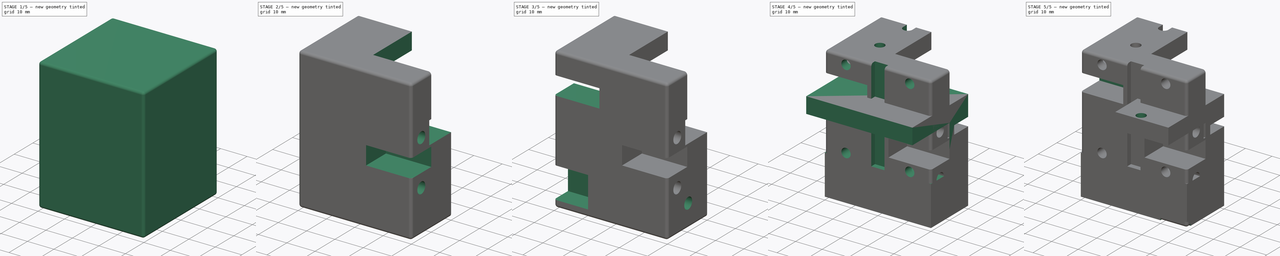
[diagram: build sequence overview — one tinted view per stage of 5, left to right]
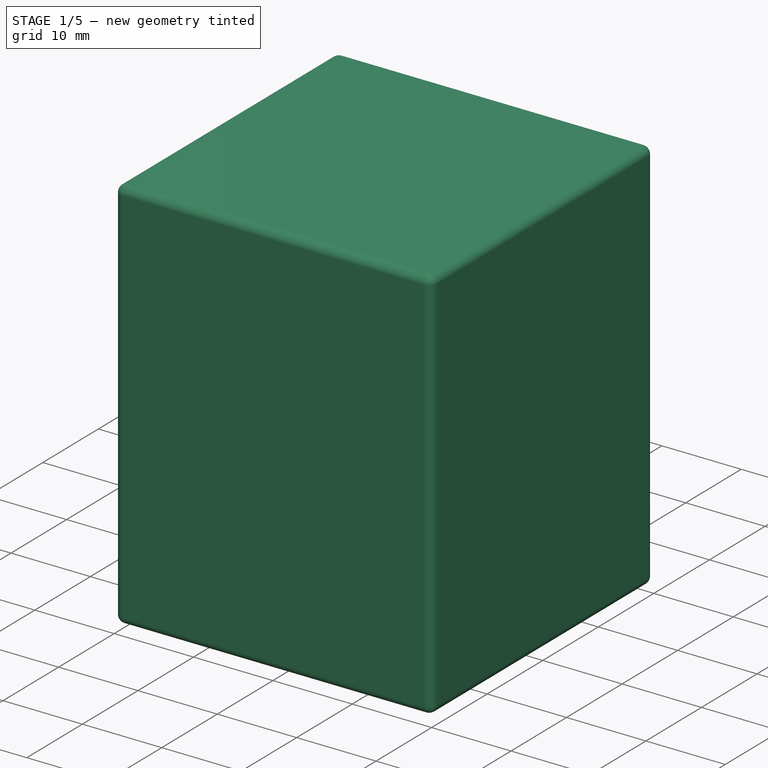
[diagram: stage 1 of 5 — iso view after this stage's code; geometry added in this stage tinted green]
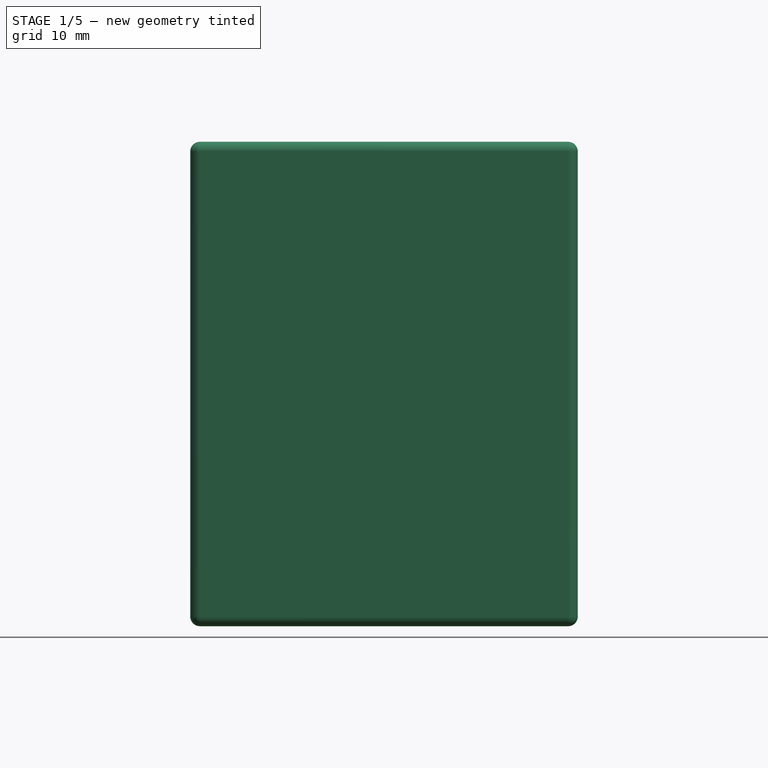
[diagram: stage 1 of 5 — front view after this stage's code; geometry added in this stage tinted green]
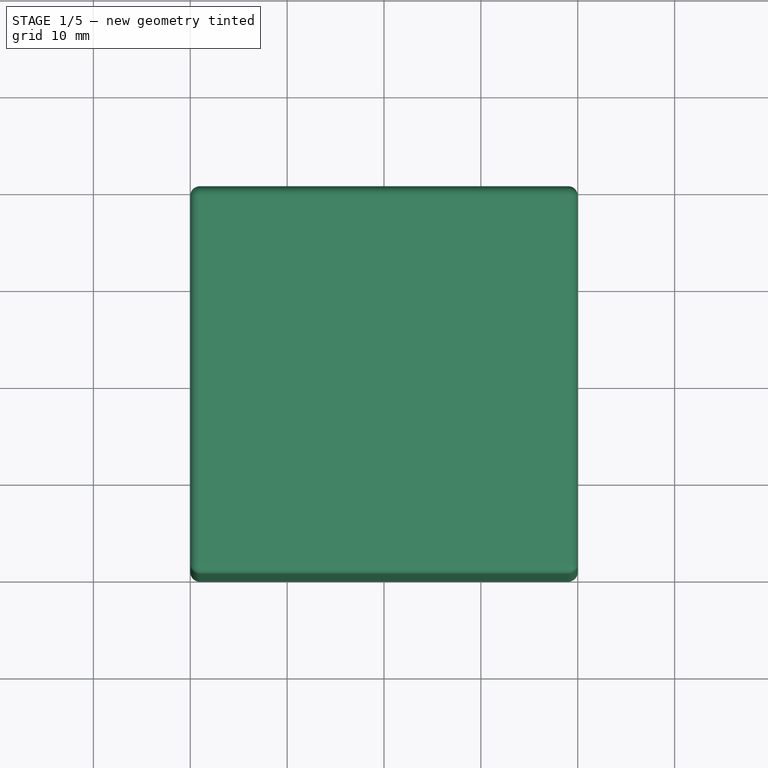
[diagram: stage 1 of 5 — top view after this stage's code; geometry added in this stage tinted green]
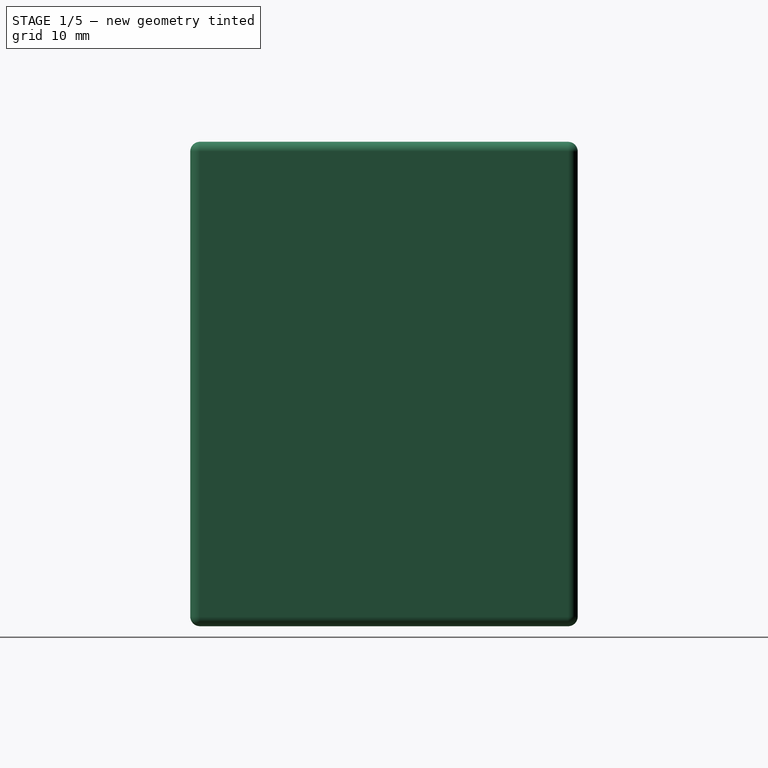
[diagram: stage 1 of 5 — right view after this stage's code; geometry added in this stage tinted green]
FCSTD DOCUMENT  (FreeCAD 0.18R16117 (Git))
Label: XCarriage
License: All rights reserved
LicenseURL: http://en.wikipedia.org/wiki/All_rights_reserved
objects: Sketcher::SketchObject×14, PartDesign::Pocket×13, PartDesign::Body×2, PartDesign::Pad×1, Part::Box×1, PartDesign::FeatureBase×1, PartDesign::Fillet×1
note: 47 computed .brp shape members not serialized (recipe doc carries the construction recipe); baked Part::Feature solids carry a one-line shape summary decoded from their .brp

FEATURE [PartDesign::Body] Body
  Group = -> [Sketch,Pad,Sketch001,Pocket,Sketch002,Pocket001,Sketch003,Pocket002]
  Origin = -> Origin
  Tip = -> Pocket002
FEATURE [Part::Box] Box  label="Würfel"
  AttacherType = Attacher::AttachEngine3D
  Height = 50
  Length = 40
  Width = 40
FEATURE [PartDesign::FeatureBase] BaseFeature
  BaseFeature = -> Box
FEATURE [Sketcher::SketchObject] Sketch004
  ExternalGeometry = -> [BaseFeature]
  MapMode = 5
  Placement = pos=(40,0,0) rot=(0.57735,0.57735,0.57735;2.0944rad)
  Support = -> [BaseFeature]
  sketch-geometry (10):
    g0: LineSegment StartX=31 StartY=27 StartZ=0 EndX=31 EndY=35 EndZ=0
    g1: LineSegment StartX=31 StartY=35 StartZ=0 EndX=30 EndY=35 EndZ=0
    g2: LineSegment StartX=30 StartY=35 StartZ=0 EndX=30 EndY=44 EndZ=0
    g3: LineSegment StartX=30 StartY=44 StartZ=0 EndX=10 EndY=44 EndZ=0
    g4: LineSegment StartX=10 StartY=44 StartZ=0 EndX=10 EndY=35 EndZ=0
    g5: LineSegment StartX=10 StartY=35 StartZ=0 EndX=9 EndY=35 EndZ=0
    g6: LineSegment StartX=9 StartY=35 StartZ=0 EndX=9 EndY=27 EndZ=0
    g7: GeomPoint X=20 Y=0 Z=0
    g8: LineSegment [constr] StartX=20 StartY=0 StartZ=0 EndX=20 EndY=50 EndZ=0
    g9: LineSegment StartX=9 StartY=27 StartZ=0 EndX=31 EndY=27 EndZ=0
  constraints (26):
    c: Vertical(g0)
    c: Coincident(g0,g1)
    c: Horizontal(g1)
    c: Coincident(g1,g2)
    c: Vertical(g2)
    c: Coincident(g2,g3)
    c: Horizontal(g3)
    c: Coincident(g3,g4)
    c: Vertical(g4)
    c: Coincident(g4,g5)
    c: Horizontal(g5)
    c: Coincident(g5,g6)
    c: Vertical(g6)
    c: DistanceX(g6,g0) = 22
    c: Symmetric(g-3,g-1,g7)
    c: Coincident(g8,g7)
    c: PointOnObject(g8,g-4)
    c: Symmetric(g6,g0,g8)
    c: DistanceY(g6,g6) = 8
    c: Horizontal(g1,g4)
    c: DistanceY(g4,g4) = 9
    c: Coincident(g9,g6)
    c: Coincident(g9,g0)
    c: DistanceX(g3,g3) = 20
    c: Symmetric(g3,g2,g8)
    c: DistanceY(g3,g-5) = 6
FEATURE [Sketcher::SketchObject] Sketch005
  ExternalGeometry = -> [BaseFeature]
  MapMode = 5
  Placement = pos=(40,0,0) rot=(0.57735,0.57735,0.57735;2.0944rad)
  Support = -> [BaseFeature]
  sketch-geometry (15):
    g0: LineSegment StartX=0 StartY=26.25 StartZ=0 EndX=10 EndY=26.25 EndZ=0
    g1: LineSegment StartX=10 StartY=26.25 StartZ=0 EndX=10 EndY=19.75 EndZ=0
    g2: LineSegment StartX=10 StartY=19.75 StartZ=0 EndX=0 EndY=19.75 EndZ=0
    g3: LineSegment StartX=0 StartY=19.75 StartZ=0 EndX=0 EndY=26.25 EndZ=0
    g4: LineSegment [constr] StartX=30 StartY=35.75 StartZ=0 EndX=30 EndY=42.25 EndZ=0
    g5: GeomPoint X=20 Y=50 Z=0
    g6: LineSegment [constr] StartX=20 StartY=50 StartZ=0 EndX=20 EndY=0 EndZ=0
    g7: LineSegment [constr] StartX=0 StartY=31 StartZ=0 EndX=40 EndY=31 EndZ=0
    g8: GeomPoint X=20 Y=31 Z=0
    g9: LineSegment [constr] StartX=20 StartY=39 StartZ=0 EndX=20 EndY=23 EndZ=0
    g10: GeomPoint X=30 Y=39 Z=0
    g11: GeomPoint X=10 Y=23 Z=0
    g12: Circle CenterX=5 CenterY=15 CenterZ=0 NormalX=0 NormalY=0 NormalZ=1 AngleXU=0 Radius=2
    g13: Circle CenterX=5 CenterY=31 CenterZ=0 NormalX=0 NormalY=0 NormalZ=1 AngleXU=0 Radius=2
    g14: GeomPoint X=5 Y=23 Z=0
  constraints (36):
    c: Coincident(g0,g1)
    c: Coincident(g1,g2)
    c: Coincident(g2,g3)
    c: Coincident(g3,g0)
    c: Horizontal(g0)
    c: Horizontal(g2)
    c: Vertical(g1)
    c: Vertical(g3)
    c: Vertical(g4)
    c: PointOnObject(g0,g-3)
    c: Symmetric(g-5,g-5,g5)
    c: Coincident(g6,g5)
    c: PointOnObject(g6,g-6)
    c: Vertical(g6)
    c: Horizontal(g7)
    c: PointOnObject(g7,g-4)
    c: PointOnObject(g8,g7)
    c: PointOnObject(g8,g6)
    c: Symmetric(g4,g0,g8)
    c: DistanceX(g0,g4) = 20
    c: Symmetric(g9,g9,g7)
    c: PointOnObject(g9,g6)
    c: DistanceY(g9,g9) = 16
    c: Symmetric(g4,g4,g10)
    c: Horizontal(g9,g10)
    c: Symmetric(g0,g1,g11)
    c: Horizontal(g11,g9)
    c: Diameter(g13) = 4
    c: Equal(g13,g12)
    c: Symmetric(g0,g2,g14)
    c: DistanceY(g12,g13) = 16
    c: Symmetric(g12,g13,g14)
    c: Vertical(g13,g12)
    c: DistanceY(g7,g-5) = 19
    c: PointOnObject(g7,g-3)
    c: DistanceY(g4,g4) = 6.5
FEATURE [Sketcher::SketchObject] Sketch006
  ExternalGeometry = -> [BaseFeature]
  MapMode = 5
  Placement = pos=(0,0,50) rot=(0,0,1;0rad)
  Support = -> [BaseFeature]
  sketch-geometry (7):
    g0: LineSegment StartX=0 StartY=29.5 StartZ=0 EndX=19.5 EndY=29.5 EndZ=0
    g1: LineSegment StartX=19.5 StartY=29.5 StartZ=0 EndX=19.5 EndY=10 EndZ=0
    g2: LineSegment StartX=19.5 StartY=10 StartZ=0 EndX=40 EndY=10 EndZ=0
    g3: LineSegment StartX=40 StartY=10 StartZ=0 EndX=40 EndY=40 EndZ=0
    g4: LineSegment StartX=40 StartY=40 StartZ=0 EndX=0 EndY=40 EndZ=0
    g5: LineSegment StartX=0 StartY=29.5 StartZ=0 EndX=0 EndY=40 EndZ=0
    g6: GeomPoint X=20 Y=0 Z=0
  constraints (17):
    c: Coincident(g1,g2)
    c: Horizontal(g2)
    c: Coincident(g2,g3)
    c: Vertical(g3)
    c: Coincident(g3,g4)
    c: Horizontal(g0)
    c: Coincident(g3,g-4)
    c: Coincident(g5,g4)
    c: Coincident(g4,g-6)
    c: Vertical(g5)
    c: Coincident(g0,g5)
    c: Coincident(g0,g1)
    c: Vertical(g1)
    c: DistanceY(g5,g5) = 10.5
    c: DistanceY(g-5,g2) = 10
    c: Symmetric(g-5,g-5,g6)
    c: DistanceX(g1,g6) = 0.5
FEATURE [Sketcher::SketchObject] Sketch007
  ExternalGeometry = -> [BaseFeature]
  MapMode = 5
  Placement = pos=(0,0,0) rot=(1,0,0;3.14159rad)
  Support = -> [BaseFeature]
  sketch-geometry (4):
    g0: LineSegment StartX=0 StartY=-40 StartZ=0 EndX=40 EndY=-40 EndZ=0
    g1: LineSegment StartX=40 StartY=-40 StartZ=0 EndX=40 EndY=-20 EndZ=0
    g2: LineSegment StartX=40 StartY=-20 StartZ=0 EndX=0 EndY=-20 EndZ=0
    g3: LineSegment StartX=0 StartY=-20 StartZ=0 EndX=0 EndY=-40 EndZ=0
  constraints (9):
    c: Coincident(g0,g1)
    c: Coincident(g1,g2)
    c: Coincident(g2,g3)
    c: Coincident(g3,g0)
    c: Horizontal(g2)
    c: Vertical(g1)
    c: Symmetric(g-1,g-4,g2)
    c: Coincident(g0,g-4)
    c: Coincident(g0,g-3)
FEATURE [Sketcher::SketchObject] Sketch008
  ExternalGeometry = -> [BaseFeature]
  MapMode = 5
  Placement = pos=(0,0,0) rot=(0.57735,-0.57735,-0.57735;2.0944rad)
  Support = -> [BaseFeature]
  sketch-geometry (12):
    g0: LineSegment StartX=-10 StartY=42.25 StartZ=0 EndX=0 EndY=42.25 EndZ=0
    g1: LineSegment StartX=0 StartY=42.25 StartZ=0 EndX=0 EndY=35.75 EndZ=0
    g2: LineSegment StartX=0 StartY=35.75 StartZ=0 EndX=-10 EndY=35.75 EndZ=0
    g3: LineSegment StartX=-10 StartY=35.75 StartZ=0 EndX=-10 EndY=42.25 EndZ=0
    g4: LineSegment [constr] StartX=-30 StartY=19.75 StartZ=0 EndX=-30 EndY=26.25 EndZ=0
    g5: GeomPoint X=-20 Y=31 Z=0
    g6: GeomPoint X=-10 Y=39 Z=0
    g7: GeomPoint X=-30 Y=23 Z=0
    g8: Circle CenterX=-5 CenterY=47 CenterZ=0 NormalX=0 NormalY=0 NormalZ=1 AngleXU=0 Radius=2
    g9: Circle CenterX=-5 CenterY=31 CenterZ=0 NormalX=0 NormalY=0 NormalZ=1 AngleXU=0 Radius=2
    g10: GeomPoint X=-5 Y=39 Z=0
    g11: LineSegment [constr] StartX=-40 StartY=31 StartZ=0 EndX=0 EndY=31 EndZ=0
  constraints (28):
    c: Coincident(g0,g1)
    c: Coincident(g1,g2)
    c: Coincident(g2,g3)
    c: Coincident(g3,g0)
    c: Horizontal(g0)
    c: Horizontal(g2)
    c: Vertical(g1)
    c: Vertical(g3)
    c: Vertical(g4)
    c: Symmetric(g4,g2,g5)
    c: DistanceX(g4,g2) = 20
    c: Symmetric(g0,g2,g6)
    c: Symmetric(g4,g4,g7)
    c: DistanceY(g7,g6) = 16
    c: Diameter(g9) = 4
    c: Equal(g9,g8)
    c: Symmetric(g2,g0,g10)
    c: Symmetric(g8,g9,g10)
    c: Vertical(g8,g9)
    c: DistanceY(g9,g8) = 16
    c: PointOnObject(g0,g-4)
    c: PointOnObject(g11,g-6)
    c: PointOnObject(g11,g-4)
    c: Horizontal(g11)
    c: Symmetric(g11,g11,g5)
    c: DistanceY(g11,g-6) = 19
    c: Equal(g3,g4)
    c: DistanceY(g4,g4) = 6.5
FEATURE [Sketcher::SketchObject] Sketch009
  ExternalGeometry = -> [BaseFeature]
  MapMode = 5
  Placement = pos=(0,0,0) rot=(0.57735,-0.57735,-0.57735;2.0944rad)
  Support = -> [BaseFeature]
  sketch-geometry (5):
    g0: LineSegment StartX=-7 StartY=13.5 StartZ=0 EndX=0 EndY=13.5 EndZ=0
    g1: LineSegment StartX=0 StartY=13.5 StartZ=0 EndX=0 EndY=2.5 EndZ=0
    g2: LineSegment StartX=0 StartY=2.5 StartZ=0 EndX=-7 EndY=2.5 EndZ=0
    g3: LineSegment StartX=-7 StartY=2.5 StartZ=0 EndX=-7 EndY=13.5 EndZ=0
    g4: GeomPoint X=-7 Y=8 Z=0
  constraints (13):
    c: Coincident(g0,g1)
    c: Coincident(g1,g2)
    c: Coincident(g2,g3)
    c: Coincident(g3,g0)
    c: Horizontal(g0)
    c: Horizontal(g2)
    c: Vertical(g1)
    c: Vertical(g3)
    c: PointOnObject(g1,g-3)
    c: Symmetric(g0,g2,g4)
    c: DistanceY(g1,g1) = 11
    c: DistanceX(g0,g0) = 7
    c: DistanceY(g-1,g4) = 8
FEATURE [Sketcher::SketchObject] Sketch010
  ExternalGeometry = -> [BaseFeature]
  MapMode = 5
  Placement = pos=(40,0,0) rot=(0.57735,0.57735,0.57735;2.0944rad)
  Support = -> [BaseFeature]
  sketch-geometry (5):
    g0: Circle CenterX=10.5 CenterY=8 CenterZ=0 NormalX=0 NormalY=0 NormalZ=1 AngleXU=0 Radius=2
    g1: GeomPoint X=20 Y=8 Z=0
    g2: Circle [constr] CenterX=29.5 CenterY=8 CenterZ=0 NormalX=0 NormalY=0 NormalZ=1 AngleXU=0 Radius=2
    g3: GeomPoint X=20 Y=0 Z=0
    g4: LineSegment [constr] StartX=20 StartY=0 StartZ=0 EndX=20 EndY=8 EndZ=0
  constraints (10):
    c: DistanceY(g-1,g0) = 8
    c: Diameter(g0) = 4
    c: Equal(g2,g0)
    c: Symmetric(g0,g2,g1)
    c: DistanceX(g0,g2) = 19
    c: Symmetric(g-1,g-3,g3)
    c: Coincident(g4,g3)
    c: Coincident(g4,g1)
    c: Vertical(g4)
    c: Horizontal(g0,g2)
FEATURE [Sketcher::SketchObject] Sketch011
  ExternalGeometry = -> [BaseFeature]
  MapMode = 5
  Placement = pos=(0,0,0) rot=(1,0,0;1.5708rad)
  Support = -> [BaseFeature]
  sketch-geometry (4):
    g0: Circle CenterX=8 CenterY=47 CenterZ=0 NormalX=0 NormalY=0 NormalZ=1 AngleXU=0 Radius=1.75
    g1: Circle CenterX=32 CenterY=47 CenterZ=0 NormalX=0 NormalY=0 NormalZ=1 AngleXU=0 Radius=1.75
    g2: Circle CenterX=8 CenterY=17 CenterZ=0 NormalX=0 NormalY=0 NormalZ=1 AngleXU=0 Radius=1.75
    g3: Circle CenterX=32 CenterY=17 CenterZ=0 NormalX=0 NormalY=0 NormalZ=1 AngleXU=0 Radius=1.75
  constraints (12):
    c: Diameter(g2) = 3.5
    c: Equal(g2,g0)
    c: Equal(g2,g1)
    c: DistanceX(g-3,g0) = 8
    c: DistanceX(g1,g-3) = 8
    c: Horizontal(g1,g0)
    c: DistanceY(g0,g-3) = 3
    c: Equal(g3,g2)
    c: Horizontal(g2,g3)
    c: Vertical(g2,g0)
    c: Vertical(g1,g3)
    c: DistanceY(g2,g0) = 30
FEATURE [Sketcher::SketchObject] Sketch012
  ExternalGeometry = -> [BaseFeature]
  MapMode = 5
  Placement = pos=(0,0,50) rot=(0,0,1;0rad)
  Support = -> [BaseFeature]
  sketch-geometry (8):
    g0: Circle CenterX=12 CenterY=12.5 CenterZ=0 NormalX=0 NormalY=0 NormalZ=1 AngleXU=0 Radius=1.75
    g1: GeomPoint X=0 Y=20 Z=0
    g2: LineSegment [constr] StartX=0 StartY=20 StartZ=0 EndX=40 EndY=20 EndZ=0
    g3: GeomPoint X=20 Y=20 Z=0
    g4: ArcOfCircle CenterX=12 CenterY=27.5 CenterZ=0 NormalX=0 NormalY=0 NormalZ=1 AngleXU=0 Radius=1.75 StartAngle=3.14159 EndAngle=6.28319
    g5: ArcOfCircle CenterX=12 CenterY=32.5 CenterZ=0 NormalX=0 NormalY=0 NormalZ=1 AngleXU=0 Radius=1.75 StartAngle=1.3e-15 EndAngle=3.14159
    g6: LineSegment StartX=13.75 StartY=27.5 StartZ=0 EndX=13.75 EndY=32.5 EndZ=0
    g7: LineSegment StartX=10.25 StartY=27.5 StartZ=0 EndX=10.25 EndY=32.5 EndZ=0
  constraints (17):
    c: Symmetric(g-3,g-1,g1)
    c: Coincident(g2,g1)
    c: PointOnObject(g2,g-4)
    c: Horizontal(g2)
    c: Symmetric(g1,g2,g3)
    c: Tangent(g4,g7) = 1.5708
    c: Tangent(g4,g6) = -1.5708
    c: Tangent(g6,g5) = -1.5708
    c: Tangent(g7,g5) = 1.5708
    c: Vertical(g6)
    c: Equal(g4,g5)
    c: Equal(g5,g0)
    c: DistanceY(g4,g5) = 5
    c: Diameter(g0) = 3.5
    c: Symmetric(g4,g0,g2)
    c: DistanceY(g0,g4) = 15
    c: DistanceX(g4,g3) = 8
FEATURE [PartDesign::Fillet] Fillet
  Base = -> BaseFeature [Face2,Face3,Face6,Face4,Face5,Face1]
  BaseFeature = -> BaseFeature
  Radius = 1
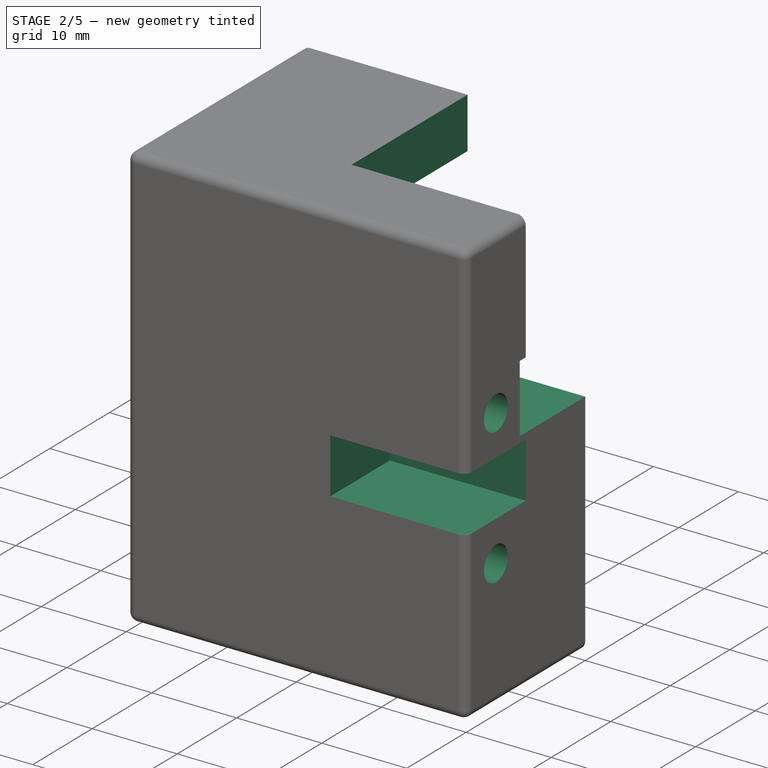
[diagram: stage 2 of 5 — iso view after this stage's code; geometry added in this stage tinted green]
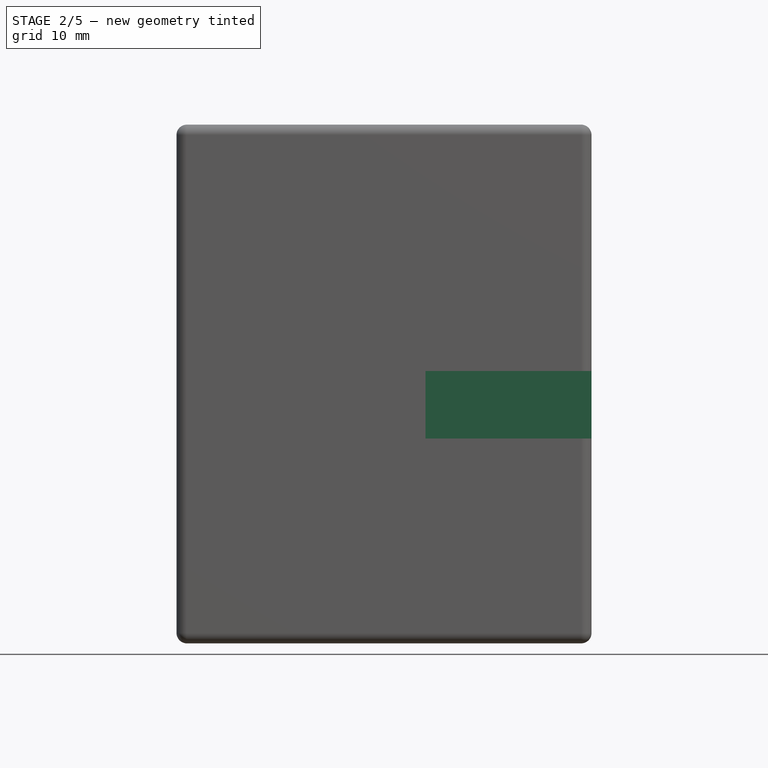
[diagram: stage 2 of 5 — front view after this stage's code; geometry added in this stage tinted green]
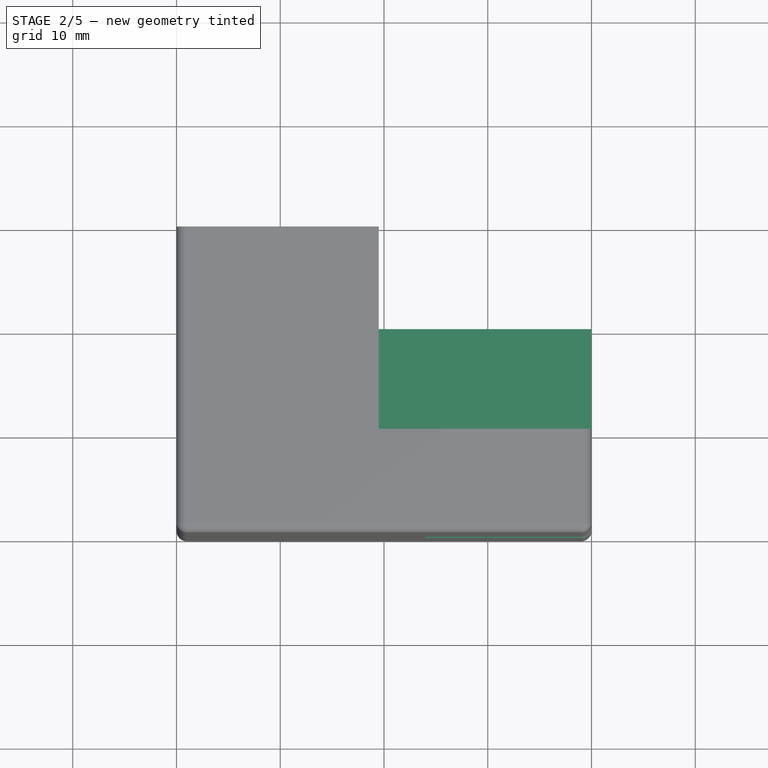
[diagram: stage 2 of 5 — top view after this stage's code; geometry added in this stage tinted green]
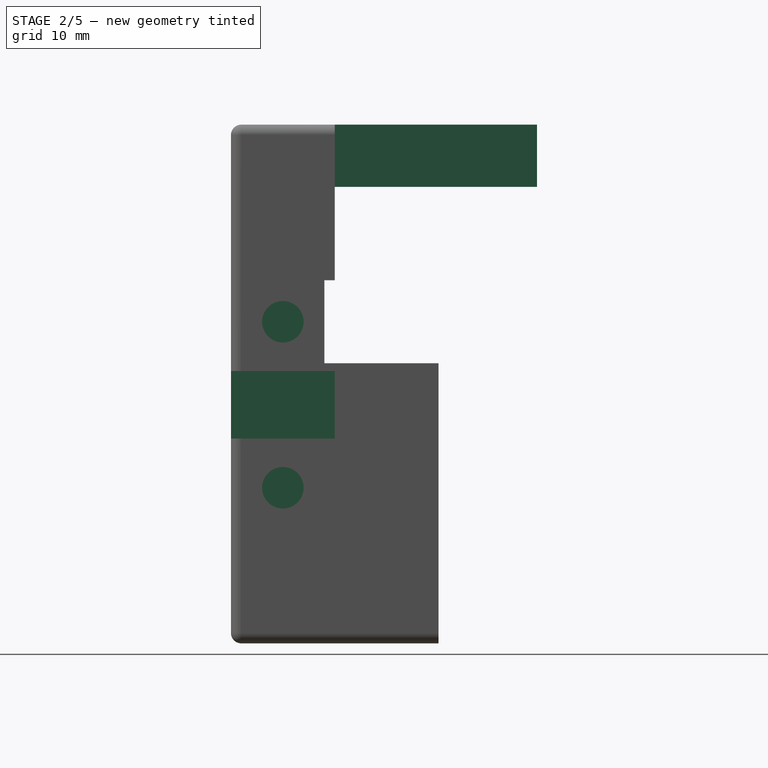
[diagram: stage 2 of 5 — right view after this stage's code; geometry added in this stage tinted green]
FEATURE [PartDesign::Pocket] Pocket003  label="PocketRail"
  BaseFeature = -> Fillet
  Length = 5
  Length2 = 100
  Profile = -> Sketch004
  Type = 1
FEATURE [PartDesign::Pocket] Pocket005  label="PocketCutHalfTop"
  BaseFeature = -> Pocket003
  Length = 6
  Length2 = 100
  Profile = -> Sketch006
  Type = 0
FEATURE [PartDesign::Pocket] Pocket006  label="PocketCutHalfBotton"
  BaseFeature = -> Pocket005
  Length = 44
  Length2 = 100
  Profile = -> Sketch007
  Type = 0
FEATURE [PartDesign::Pocket] Pocket004  label="PocketBeltFront"
  BaseFeature = -> Pocket006
  Length = 16
  Length2 = 100
  Profile = -> Sketch005
  Type = 0
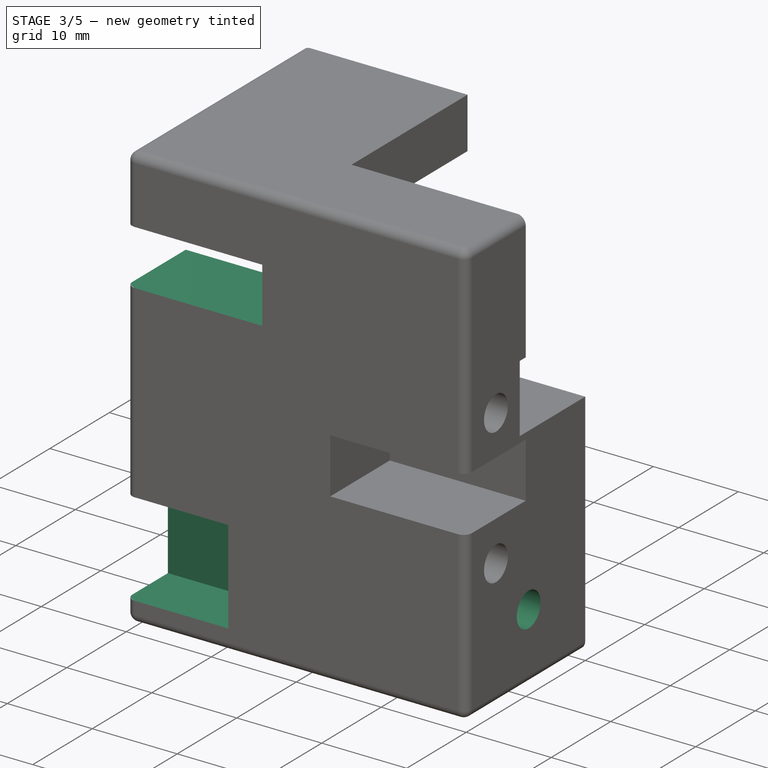
[diagram: stage 3 of 5 — iso view after this stage's code; geometry added in this stage tinted green]
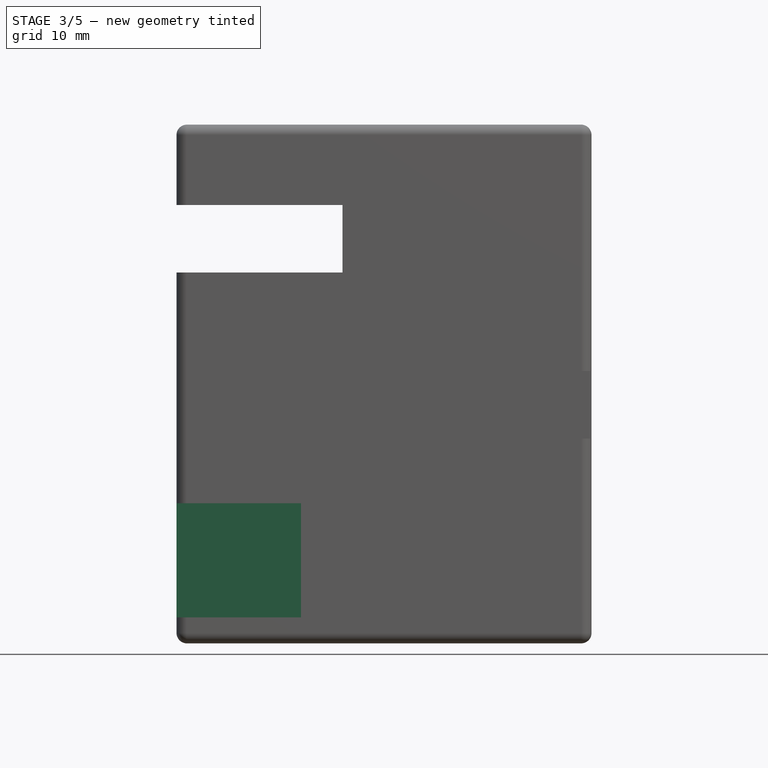
[diagram: stage 3 of 5 — front view after this stage's code; geometry added in this stage tinted green]
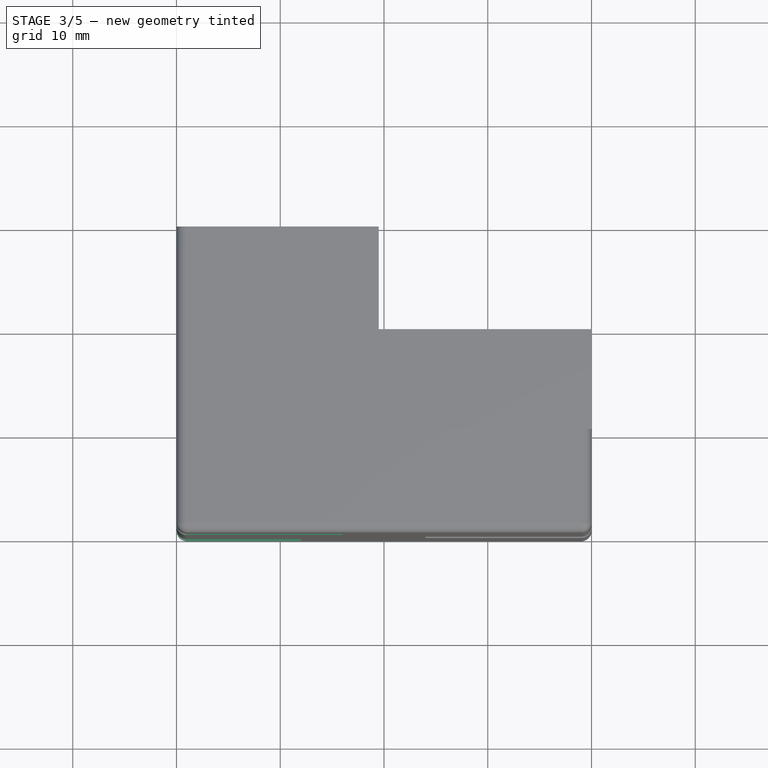
[diagram: stage 3 of 5 — top view after this stage's code; geometry added in this stage tinted green]
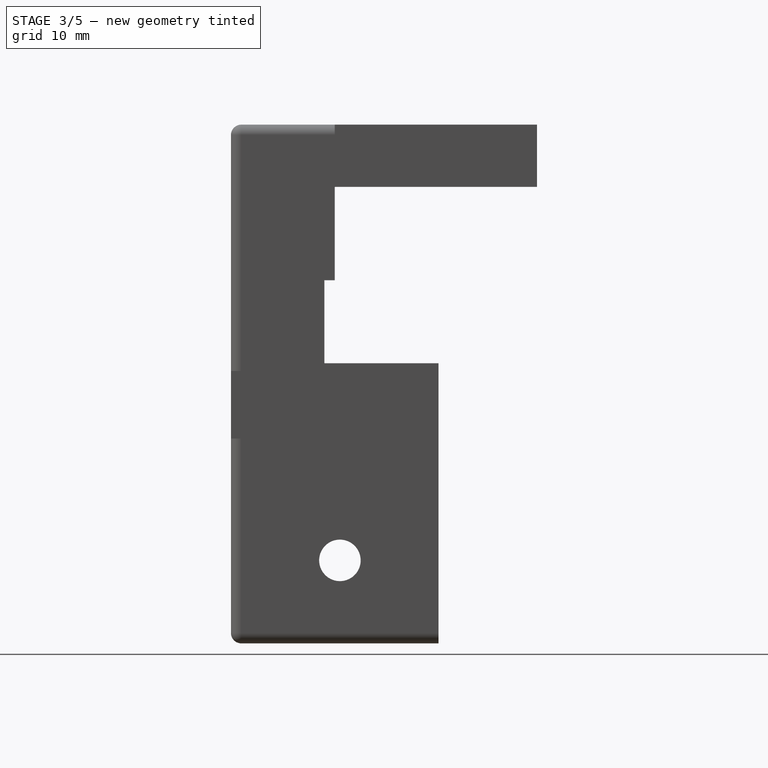
[diagram: stage 3 of 5 — right view after this stage's code; geometry added in this stage tinted green]
FEATURE [PartDesign::Pocket] Pocket007  label="PocketBeltBack"
  BaseFeature = -> Pocket004
  Length = 16
  Length2 = 100
  Profile = -> Sketch008
  Type = 0
FEATURE [PartDesign::Pocket] Pocket009  label="PocketEndstopFront"
  BaseFeature = -> Pocket007
  Length = 12
  Length2 = 100
  Profile = -> Sketch010
  Type = 1
FEATURE [PartDesign::Pocket] Pocket008  label="PocketEndstopBack"
  BaseFeature = -> Pocket009
  Length = 12
  Length2 = 100
  Profile = -> Sketch009
  Type = 0
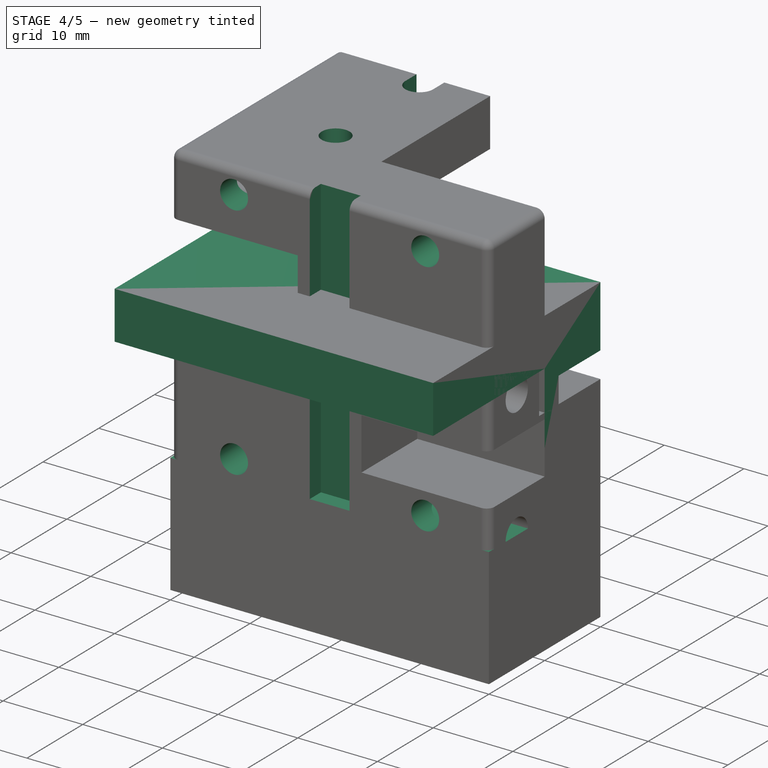
[diagram: stage 4 of 5 — iso view after this stage's code; geometry added in this stage tinted green]
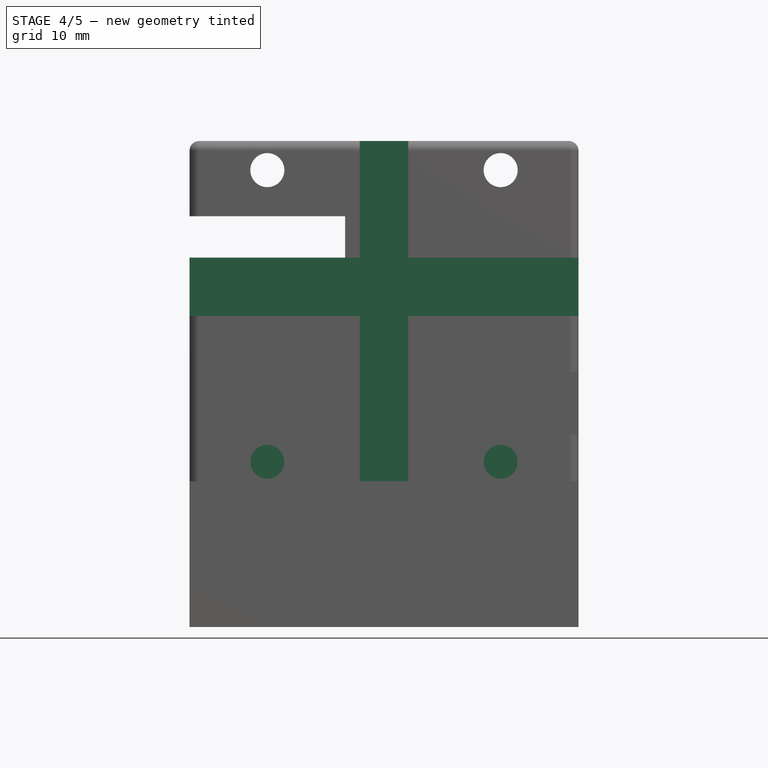
[diagram: stage 4 of 5 — front view after this stage's code; geometry added in this stage tinted green]
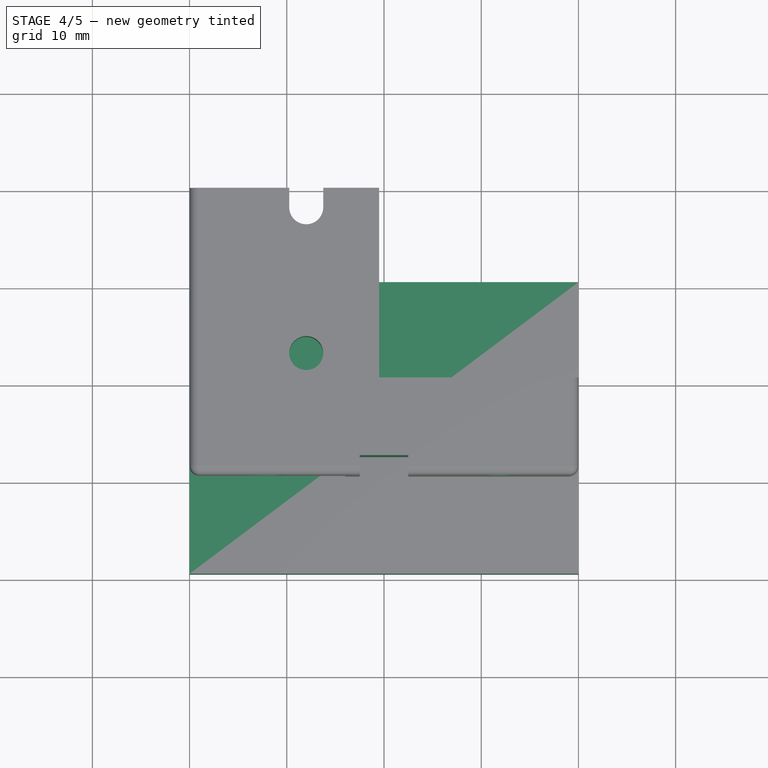
[diagram: stage 4 of 5 — top view after this stage's code; geometry added in this stage tinted green]
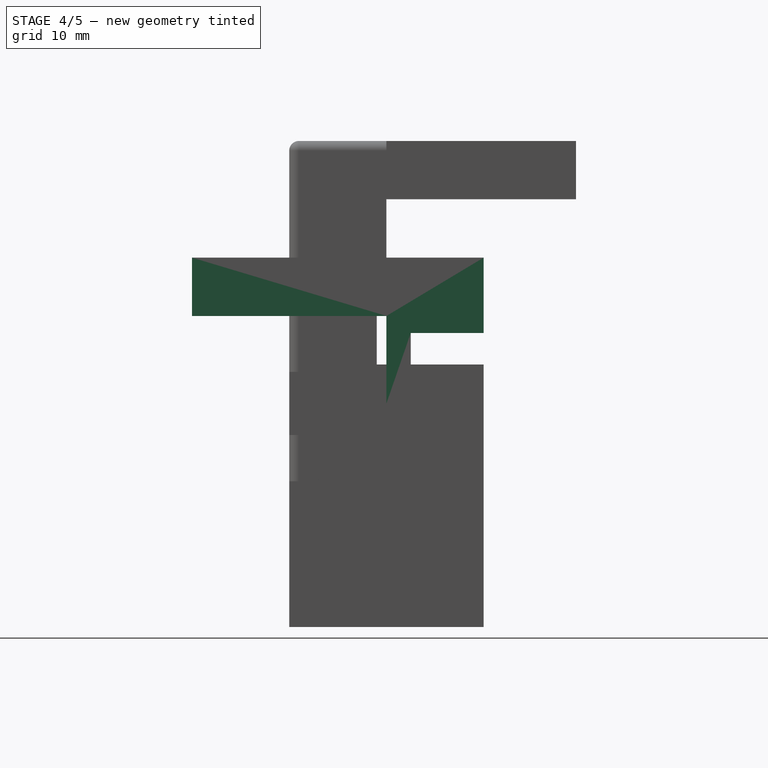
[diagram: stage 4 of 5 — right view after this stage's code; geometry added in this stage tinted green]
FEATURE [Sketcher::SketchObject] Sketch  label="Base"
  MapMode = 5
  Placement = pos=(0,0,0) rot=(0.57735,0.57735,0.57735;2.0944rad)
  Support = -> [YZ_Plane]
  sketch-geometry (21):
    g0: LineSegment StartX=11 StartY=15 StartZ=0 EndX=11 EndY=23 EndZ=0
    g1: LineSegment StartX=0 StartY=0 StartZ=0 EndX=20 EndY=0 EndZ=0
    g2: LineSegment StartX=-10 StartY=38 StartZ=0 EndX=20 EndY=38 EndZ=0
    g3: LineSegment StartX=11 StartY=23 StartZ=0 EndX=10 EndY=23 EndZ=0
    g4: LineSegment StartX=10 StartY=23 StartZ=0 EndX=10 EndY=32 EndZ=0
    g5: LineSegment StartX=10 StartY=32 StartZ=0 EndX=-10 EndY=32 EndZ=0
    g6: LineSegment StartX=0 StartY=6 StartZ=0 EndX=0 EndY=0 EndZ=0
    g7: LineSegment StartX=20 StartY=38 StartZ=0 EndX=20 EndY=30.25 EndZ=0
    g8: LineSegment StartX=12.5 StartY=30.25 StartZ=0 EndX=12.5 EndY=23.75 EndZ=0
    g9: LineSegment StartX=20 StartY=23.75 StartZ=0 EndX=20 EndY=14.25 EndZ=0
    g10: LineSegment StartX=20 StartY=14.25 StartZ=0 EndX=12.5 EndY=14.25 EndZ=0
    g11: LineSegment StartX=12.5 StartY=14.25 StartZ=0 EndX=12.5 EndY=7.75 EndZ=0
    g12: LineSegment StartX=12.5 StartY=7.75 StartZ=0 EndX=20 EndY=7.75 EndZ=0
    g13: LineSegment StartX=20 StartY=7.75 StartZ=0 EndX=20 EndY=0 EndZ=0
    g14: GeomPoint X=12.5 Y=27 Z=0
    g15: GeomPoint X=12.5 Y=11 Z=0
    g16: LineSegment StartX=0 StartY=15 StartZ=0 EndX=0 EndY=6 EndZ=0
    g17: LineSegment StartX=-10 StartY=32 StartZ=0 EndX=-10 EndY=38 EndZ=0
    g18: LineSegment StartX=0 StartY=15 StartZ=0 EndX=11 EndY=15 EndZ=0
    g19: LineSegment StartX=12.5 StartY=30.25 StartZ=0 EndX=20 EndY=30.25 EndZ=0
    g20: LineSegment StartX=12.5 StartY=23.75 StartZ=0 EndX=20 EndY=23.75 EndZ=0
  constraints (57):
    c: Horizontal(g1)
    c: DistanceY(g0,g0) = 8
    c: Horizontal(g2)
    c: Coincident(g0,g3)
    c: Horizontal(g3)
    c: Coincident(g3,g4)
    c: Vertical(g4)
    c: DistanceX(g5,g5) = 20
    c: Symmetric(g5,g4,g-2)
    c: DistanceY(g4,g2) = 6
    c: DistanceY(g0,g4) = 9
    c: Coincident(g6,g1)
    c: Vertical(g6)
    c: DistanceY(g6,g6) = 6
    c: Vertical(g2,g1)
    c: Coincident(g4,g5)
    c: Coincident(g2,g7)
    c: Vertical(g7)
    c: Vertical(g8)
    c: Vertical(g9)
    c: Coincident(g9,g10)
    c: Horizontal(g10)
    c: Coincident(g10,g11)
    c: Vertical(g11)
    c: Coincident(g11,g12)
    c: Horizontal(g12)
    c: Coincident(g12,g13)
    c: Coincident(g13,g1)
    c: Vertical(g13)
    c: DistanceY(g9,g7) = 6.5
    c: Symmetric(g8,g8,g14)
    c: Vertical(g9,g12)
    c: DistanceY(g12,g9) = 6.5
    c: Vertical(g10,g8)
    c: Symmetric(g10,g11,g15)
    c: DistanceY(g14,g4) = 5
    c: DistanceY(g6,g15) = 5
    c: Vertical(g16)
    c: Coincident(g6,g16)
    c: DistanceY(g16,g16) = 9
    c: Coincident(g17,g5)
    c: Vertical(g17)
    c: Coincident(g2,g17)
    c: DistanceX(g-1,g11) = 12.5
    c: DistanceX(g-1,g1) = 20
    c: DistanceX(g-1,g0) = 11
    c: Vertical(g0)
    c: Coincident(g18,g16)
    c: Coincident(g18,g0)
    c: Horizontal(g18)
    c: Coincident(g1,g-1)
    c: Horizontal(g19)
    c: Coincident(g19,g7)
    c: Coincident(g19,g8)
    c: Coincident(g20,g8)
    c: Coincident(g20,g9)
    c: Horizontal(g20)
FEATURE [PartDesign::Pad] Pad
  Length = 40
  Length2 = 100
  Placement = pos=(0,0,0) rot=(0.57735,0.57735,0.57735;2.0944rad)
  Profile = -> Sketch
  Type = 0
FEATURE [PartDesign::Pocket] Pocket010  label="PocketHolesSide"
  BaseFeature = -> Pocket008
  Length = 5
  Length2 = 100
  Profile = -> Sketch011
  Type = 1
FEATURE [PartDesign::Pocket] Pocket011  label="PocketMountingHolesTop"
  BaseFeature = -> Pocket010
  Length = 6
  Length2 = 100
  Profile = -> Sketch012
  Type = 0
FEATURE [Sketcher::SketchObject] Sketch013
  ExternalGeometry = -> [BaseFeature]
  MapMode = 5
  Placement = pos=(0,0,0) rot=(1,0,0;1.5708rad)
  Support = -> [BaseFeature]
  sketch-geometry (9):
    g0: GeomPoint X=20 Y=25 Z=0
    g1: LineSegment [constr] StartX=20 StartY=50 StartZ=0 EndX=20 EndY=0 EndZ=0
    g2: LineSegment StartX=17.5 StartY=50 StartZ=0 EndX=22.5 EndY=50 EndZ=0
    g3: LineSegment StartX=22.5 StartY=50 StartZ=0 EndX=22.5 EndY=5.5 EndZ=0
    g4: LineSegment StartX=22.5 StartY=5.5 StartZ=0 EndX=0 EndY=5.5 EndZ=0
    g5: LineSegment StartX=17.5 StartY=50 StartZ=0 EndX=17.5 EndY=10.5 EndZ=0
    g6: LineSegment StartX=17.5 StartY=10.5 StartZ=0 EndX=0 EndY=10.5 EndZ=0
    g7: LineSegment StartX=0 StartY=10.5 StartZ=0 EndX=0 EndY=5.5 EndZ=0
    g8: GeomPoint X=0 Y=8 Z=0
  constraints (23):
    c: Symmetric(g-1,g-3,g0)
    c: PointOnObject(g1,g-3)
    c: PointOnObject(g1,g-4)
    c: Vertical(g1)
    c: PointOnObject(g0,g1)
    c: Coincident(g2,g3)
    c: Coincident(g3,g4)
    c: Horizontal(g4)
    c: Vertical(g3)
    c: Symmetric(g2,g2,g1)
    c: PointOnObject(g2,g-3)
    c: Coincident(g5,g2)
    c: Vertical(g5)
    c: Coincident(g6,g5)
    c: Horizontal(g6)
    c: Coincident(g7,g6)
    c: Vertical(g7)
    c: Coincident(g4,g7)
    c: DistanceX(g2,g2) = 5
    c: Equal(g7,g2)
    c: Vertical(g4,g-1)
    c: Symmetric(g6,g4,g8)
    c: DistanceY(g-1,g8) = 8
FEATURE [PartDesign::Pocket] Pocket012
  BaseFeature = -> Pocket011
  Length = 2
  Length2 = 100
  Profile = -> Sketch013
  Type = 0
FEATURE [PartDesign::Body] Body001
  BaseFeature = -> Box
  Group = -> [BaseFeature,Fillet,Pocket003,Pocket005,Pocket006,Sketch004,Sketch005,Pocket004,Sketch006,Sketch007,Sketch008,Pocket007,Pocket009,Sketch009,Pocket008,Sketch010,Sketch011,Pocket010,Sketch012,Pocket011,Sketch013,Pocket012]
  Origin = -> Origin001
  Tip = -> Pocket012
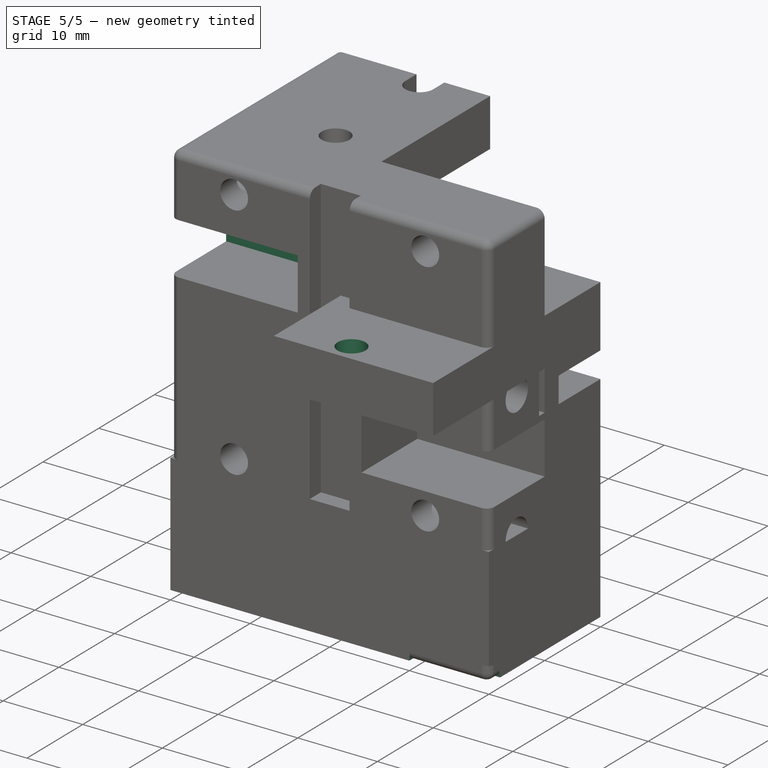
[diagram: stage 5 of 5 — iso view after this stage's code; geometry added in this stage tinted green]
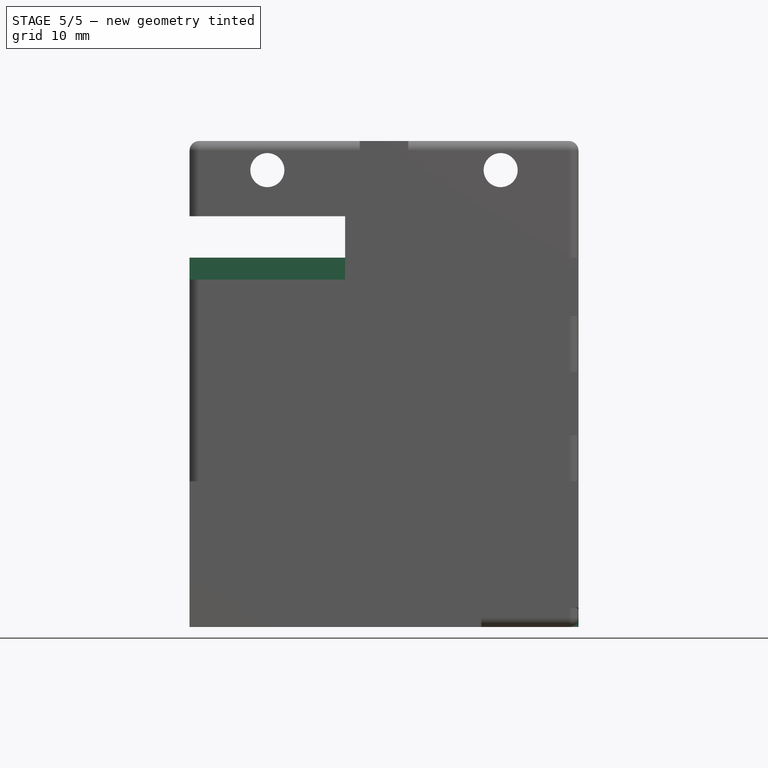
[diagram: stage 5 of 5 — front view after this stage's code; geometry added in this stage tinted green]
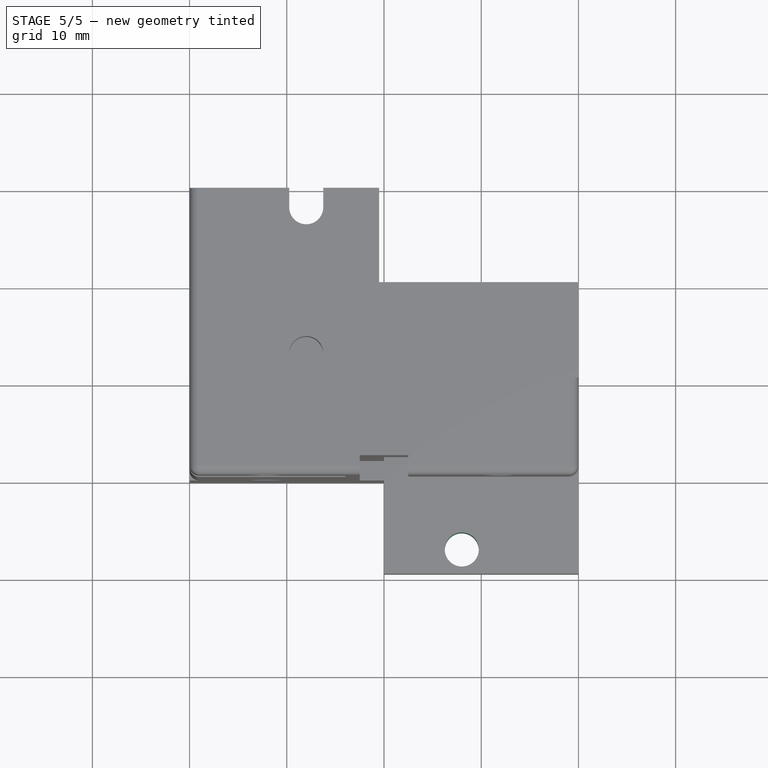
[diagram: stage 5 of 5 — top view after this stage's code; geometry added in this stage tinted green]
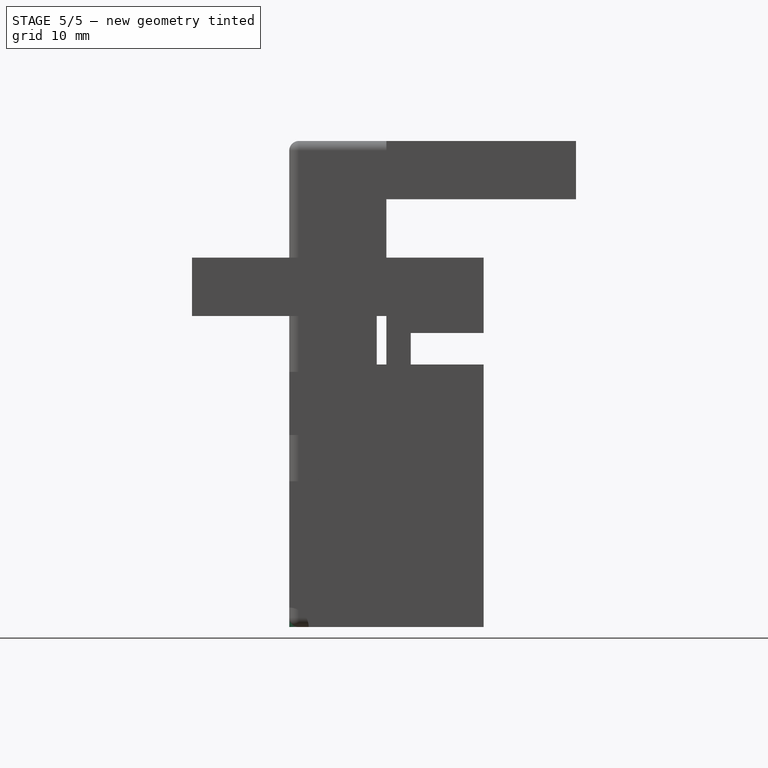
[diagram: stage 5 of 5 — right view after this stage's code; geometry added in this stage tinted green]
FEATURE [Sketcher::SketchObject] Sketch001
  ExternalGeometry = -> [Pad]
  MapMode = 5
  Placement = pos=(0,0,0) rot=(0.57735,0.57735,0.57735;2.0944rad)
  Support = -> [YZ_Plane]
  sketch-geometry (8):
    g0: LineSegment StartX=20 StartY=14.25 StartZ=0 EndX=13.5 EndY=14.25 EndZ=0
    g1: LineSegment StartX=13.5 StartY=14.25 StartZ=0 EndX=13.5 EndY=3.25 EndZ=0
    g2: LineSegment StartX=13.5 StartY=3.25 StartZ=0 EndX=20 EndY=3.25 EndZ=0
    g3: LineSegment StartX=20 StartY=3.25 StartZ=0 EndX=20 EndY=14.25 EndZ=0
    g4: Circle CenterX=9.7 CenterY=8.75 CenterZ=0 NormalX=0 NormalY=0 NormalZ=1 AngleXU=0 Radius=2
    g5: GeomPoint X=13.5 Y=8.75 Z=0
    g6: Circle CenterX=16.25 CenterY=34.125 CenterZ=0 NormalX=0 NormalY=0 NormalZ=1 AngleXU=0 Radius=2
    g7: Circle CenterX=16.25 CenterY=19 CenterZ=0 NormalX=0 NormalY=0 NormalZ=1 AngleXU=0 Radius=2
  constraints (19):
    c: Coincident(g-3,g0)
    c: Horizontal(g0)
    c: Coincident(g0,g1)
    c: Vertical(g1)
    c: Coincident(g1,g2)
    c: Horizontal(g2)
    c: Coincident(g2,g3)
    c: Vertical(g3)
    c: Coincident(g3,g0)
    c: DistanceY(g3,g3) = 11
    c: DistanceX(g0,g0) = 6.5
    c: Symmetric(g0,g1,g5)
    c: Horizontal(g5,g4)
    c: Diameter(g4) = 4
    c: DistanceX(g4,g0) = 10.3
    c: Diameter(g7) = 4
    c: Equal(g7,g6)
    c: Symmetric(g-6,g-7,g6)
    c: Symmetric(g-5,g0,g7)
FEATURE [PartDesign::Pocket] Pocket
  BaseFeature = -> Pad
  Length = 12.5
  Length2 = 100
  Placement = pos=(0,0,0) rot=(0.57735,0.57735,0.57735;2.0944rad)
  Profile = -> Sketch001
  Reversed = true
  Type = 0
FEATURE [Sketcher::SketchObject] Sketch002
  ExternalGeometry = -> [Pocket]
  MapMode = 5
  Placement = pos=(-1.06e-14,1.67e-14,38) rot=(0,0,-1;1.5708rad)
  Support = -> [Pocket]
  sketch-geometry (6):
    g0: LineSegment StartX=10 StartY=-7.1e-15 StartZ=0 EndX=-10 EndY=-7.1e-15 EndZ=0
    g1: LineSegment StartX=-10 StartY=-7.1e-15 StartZ=0 EndX=-10 EndY=20 EndZ=0
    g2: LineSegment StartX=-10 StartY=20 StartZ=0 EndX=10 EndY=20 EndZ=0
    g3: LineSegment StartX=10 StartY=20 StartZ=0 EndX=10 EndY=-7.1e-15 EndZ=0
    g4: Circle CenterX=-7.5 CenterY=28 CenterZ=0 NormalX=0 NormalY=0 NormalZ=1 AngleXU=0 Radius=1.75
    g5: Circle CenterX=7.5 CenterY=28 CenterZ=0 NormalX=0 NormalY=0 NormalZ=1 AngleXU=0 Radius=1.75
  constraints (15):
    c: Coincident(g0,g1)
    c: Coincident(g1,g2)
    c: Coincident(g2,g3)
    c: Coincident(g3,g0)
    c: Horizontal(g0)
    c: Horizontal(g2)
    c: Diameter(g4) = 3.5
    c: Equal(g4,g5)
    c: DistanceX(g4,g5) = 15
    c: Symmetric(g5,g4,g-2)
    c: DistanceY(g1,g5) = 8
    c: DistanceX(g2,g2) = 20
    c: Symmetric(g-3,g-3,g2)
    c: Vertical(g1)
    c: Coincident(g0,g-3)
FEATURE [PartDesign::Pocket] Pocket001
  BaseFeature = -> Pocket
  Length = 6
  Length2 = 100
  Placement = pos=(0,0,0) rot=(0.57735,0.57735,0.57735;2.0944rad)
  Profile = -> Sketch002
  Type = 0
FEATURE [Sketcher::SketchObject] Sketch003
  ExternalGeometry = -> [Pocket001]
  MapMode = 5
  Placement = pos=(40,-8.8e-15,8.8e-15) rot=(0.57735,0.57735,0.57735;2.0944rad)
  Support = -> [Pocket001]
  sketch-geometry (3):
    g0: Circle CenterX=0 CenterY=2e-15 CenterZ=0 NormalX=0 NormalY=0 NormalZ=1 AngleXU=0 Radius=2
    g1: Circle CenterX=16.25 CenterY=11 CenterZ=0 NormalX=0 NormalY=0 NormalZ=1 AngleXU=0 Radius=2
    g2: Circle CenterX=-10.3 CenterY=2.25 CenterZ=0 NormalX=0 NormalY=0 NormalZ=1 AngleXU=0 Radius=2
  constraints (7):
    c: Diameter(g1) = 4
    c: Equal(g1,g0)
    c: Symmetric(g-4,g-3,g1)
    c: Symmetric(g-5,g-6,g0)
    c: Diameter(g2) = 4
    c: DistanceY(g2,g-3) = 5.5
    c: DistanceX(g2,g-6) = 10.3
FEATURE [PartDesign::Pocket] Pocket002
  BaseFeature = -> Pocket001
  Length = 10
  Length2 = 100
  Placement = pos=(0,0,0) rot=(0.57735,0.57735,0.57735;2.0944rad)
  Profile = -> Sketch003
  Type = 0
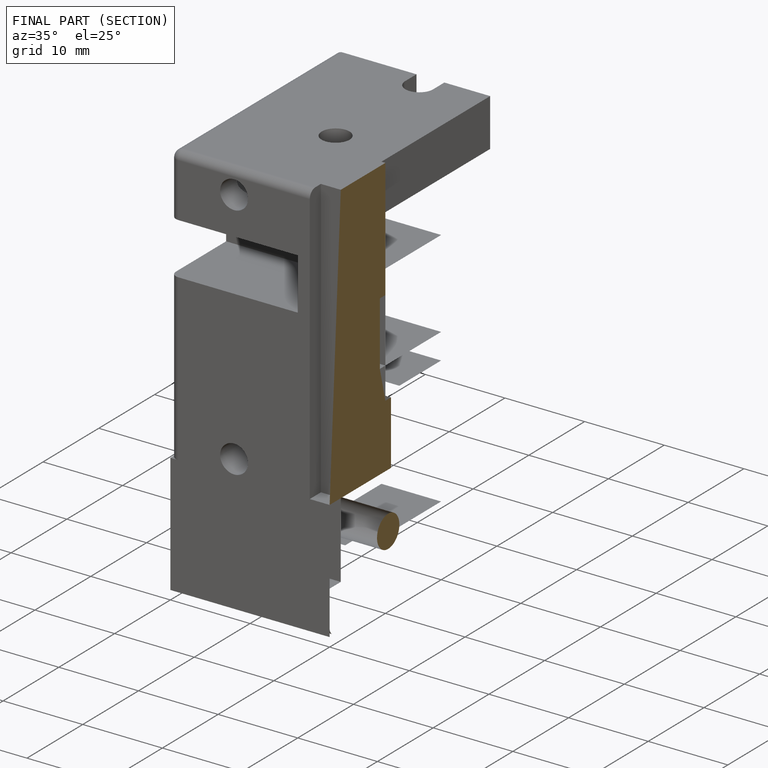
[diagram: finished part — half-section view (interior)]
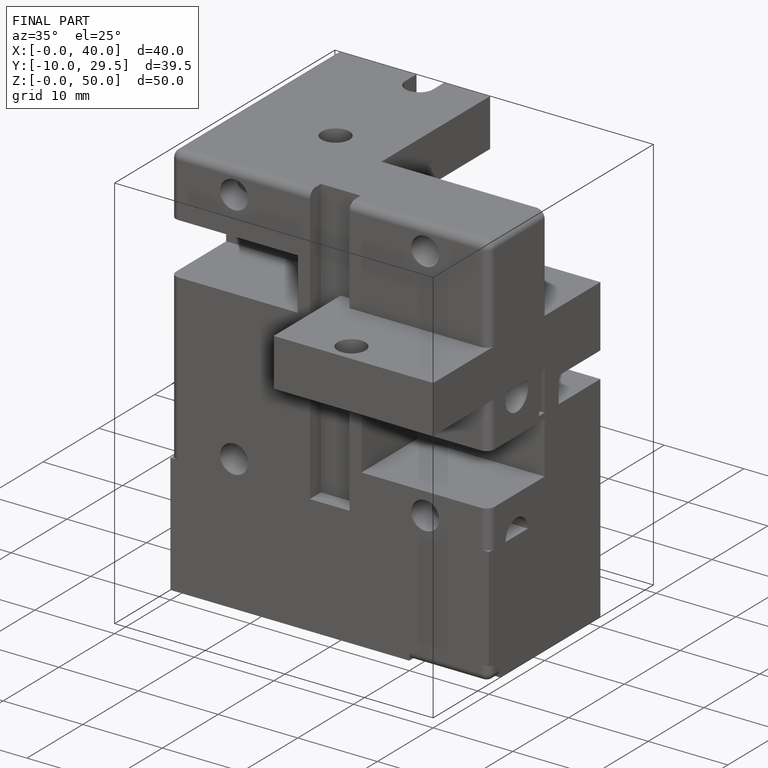
[diagram: finished part — iso view with bounding-box wireframe]
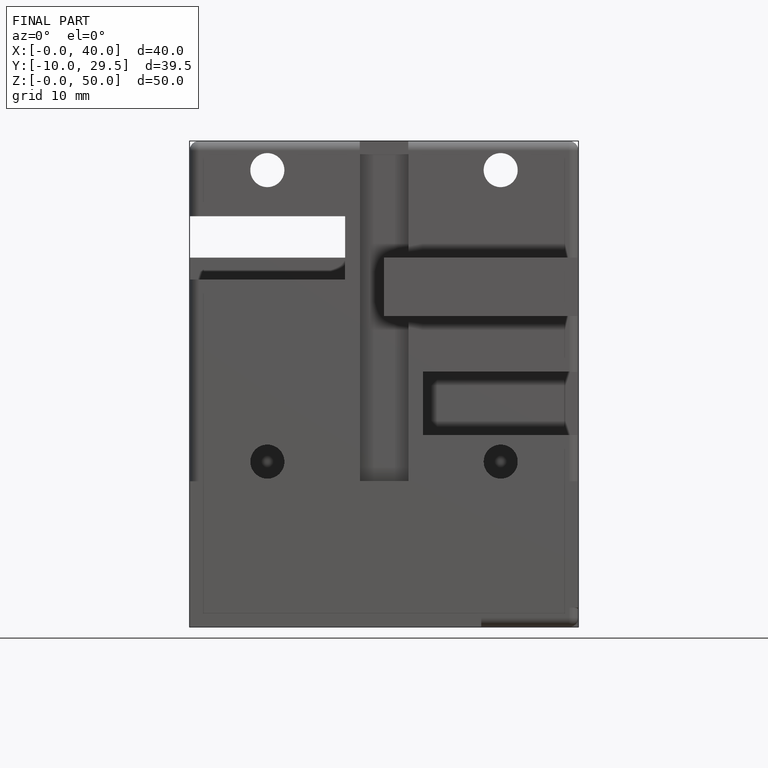
[diagram: finished part — front view with bounding-box wireframe]
